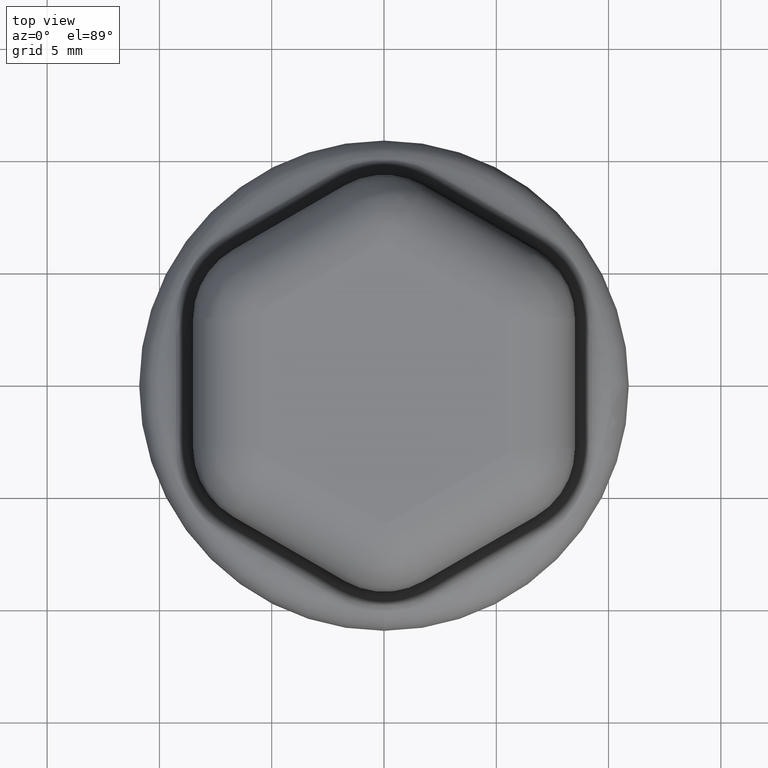
[diagram: clean part render]
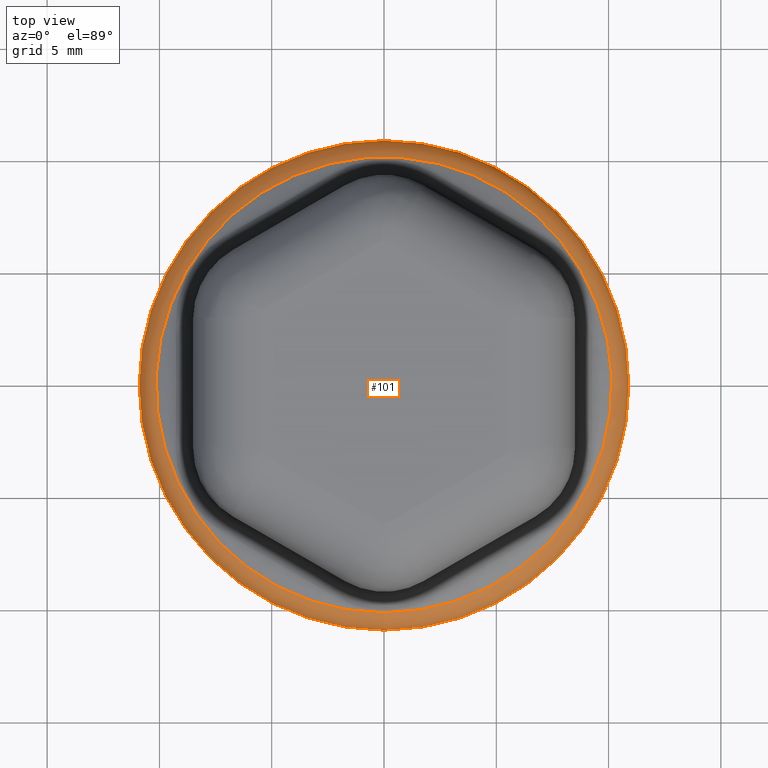
[diagram: same view with one face highlighted and labeled with its STEP entity id]
A machine part, top view. The second image highlights one B-rep face of the part: STEP entity #101.
In plain terms, the highlighted toroidal blend (fillet) surface has major radius 9.4 mm and minor (blend) radius 1.5 mm.
Its self-contained STEP definition (entity closure, byte-faithful):
#101 = ADVANCED_FACE( '', ( #208, #209 ), #210, .T. );
#208 = FACE_OUTER_BOUND( '', #1382, .T. );
#209 = FACE_OUTER_BOUND( '', #1383, .T. );
#210 = TOROIDAL_SURFACE( '', #1384, 9.40000000000000, 1.50000000000000 );
#1382 = EDGE_LOOP( '', ( #3006 ) );
#1383 = EDGE_LOOP( '', ( #3007 ) );
#1384 = AXIS2_PLACEMENT_3D( '', #3008, #3009, #3010 );
#3006 = ORIENTED_EDGE( '', *, *, #3423, .F. );
#3007 = ORIENTED_EDGE( '', *, *, #3424, .F. );
#3008 = CARTESIAN_POINT( '', ( 0.000000000000000, 1.10214571844014E-016, 1.80000000000001 ) );
#3009 = DIRECTION( '', ( 0.000000000000000, 6.12303176911189E-017, 1.00000000000000 ) );
#3010 = DIRECTION( '', ( 0.000000000000000, -1.00000000000000, 6.12303176911189E-017 ) );
#3423 = EDGE_CURVE( '', #3646, #3646, #3647, .T. );
#3424 = EDGE_CURVE( '', #3648, #3648, #3649, .F. );
#3646 = VERTEX_POINT( '', #4634 );
#3647 = CIRCLE( '', #4635, 10.1500000000000 );
#3648 = VERTEX_POINT( '', #4636 );
#3649 = CIRCLE( '', #4637, 10.9000000000000 );
#4634 = CARTESIAN_POINT( '', ( 0.000000000000000, -10.1500000000000, 3.09903810567667 ) );
#4635 = AXIS2_PLACEMENT_3D( '', #5500, #5501, #5502 );
#4636 = CARTESIAN_POINT( '', ( 0.000000000000000, -10.9000000000000, 1.80000000000001 ) );
#4637 = AXIS2_PLACEMENT_3D( '', #5503, #5504, #5505 );
#5500 = CARTESIAN_POINT( '', ( 0.000000000000000, 1.89755087747465E-016, 3.09903810567667 ) );
#5501 = DIRECTION( '', ( 0.000000000000000, 6.12303176911189E-017, 1.00000000000000 ) );
#5502 = DIRECTION( '', ( 0.000000000000000, -1.00000000000000, 6.12303176911189E-017 ) );
#5503 = CARTESIAN_POINT( '', ( 0.000000000000000, 1.10214571844014E-016, 1.80000000000001 ) );
#5504 = DIRECTION( '', ( 0.000000000000000, 6.12303176911189E-017, 1.00000000000000 ) );
#5505 = DIRECTION( '', ( 0.000000000000000, -1.00000000000000, 6.12303176911189E-017 ) );